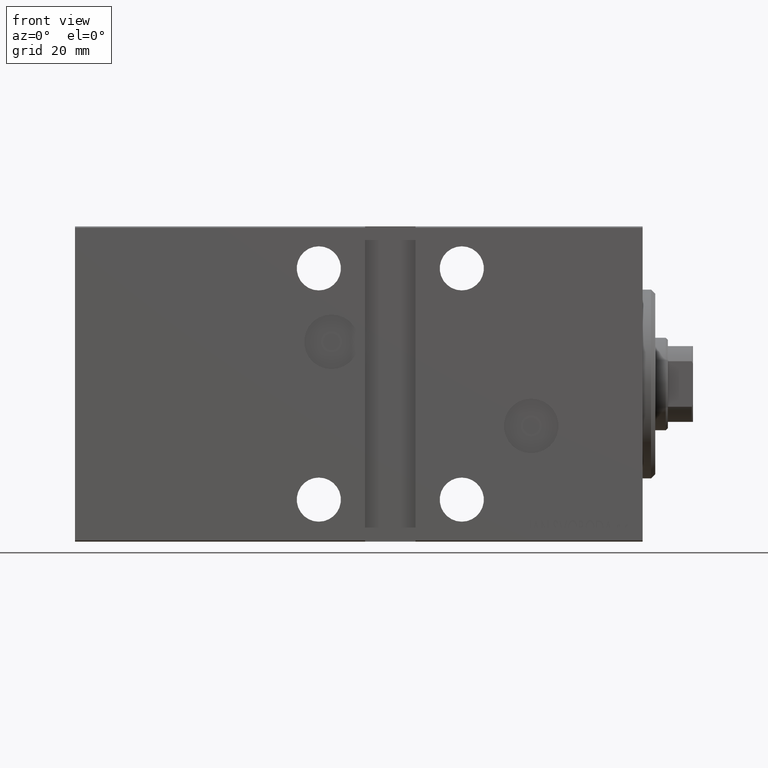
[diagram: clean part render]
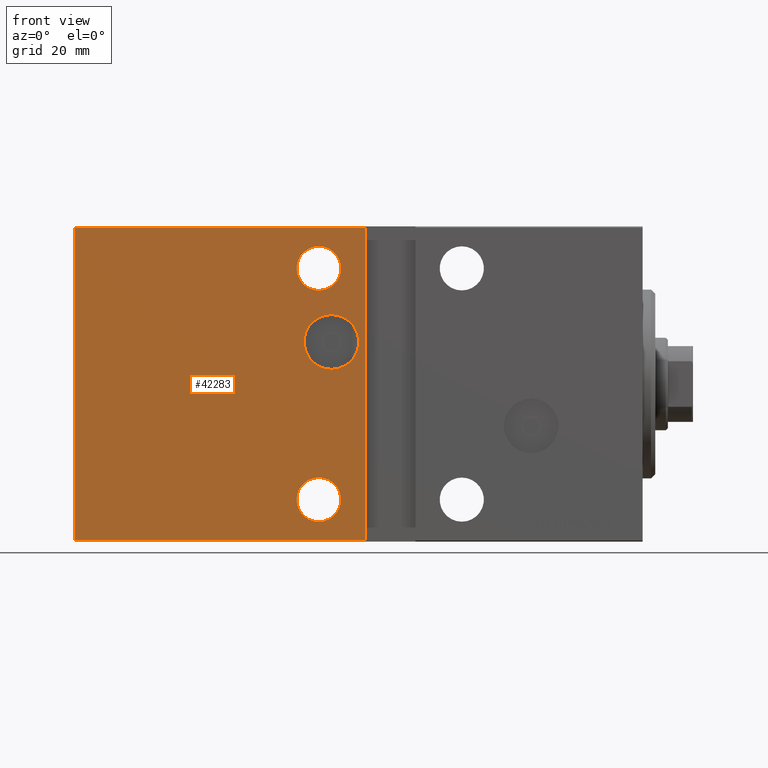
[diagram: same view with one face highlighted and labeled with its STEP entity id]
A machine part, front view. The second image highlights one B-rep face of the part: STEP entity #42283.
In plain terms, the highlighted planar face has unit normal (-0, 1, -0).
Its self-contained STEP definition (entity closure, byte-faithful):
#455 = CARTESIAN_POINT ( 'NONE',  ( 135.0000000000000000, 27.50000000000000355, -37.50000000000000000 ) ) ;
#468 = CIRCLE ( 'NONE', #22357, 5.250000000000004441 ) ;
#539 = EDGE_LOOP ( 'NONE', ( #28275, #36237 ) ) ;
#675 = DIRECTION ( 'NONE',  ( 0.000000000000000000, 0.000000000000000000, 1.000000000000000000 ) ) ;
#845 = CIRCLE ( 'NONE', #9316, 5.250000000000004441 ) ;
#868 = CARTESIAN_POINT ( 'NONE',  ( 74.00000000000000000, 27.50000000000000000, 10.00000000000000178 ) ) ;
#1470 = EDGE_CURVE ( 'NONE', #42209, #6439, #2373, .T. ) ;
#1658 = EDGE_CURVE ( 'NONE', #7957, #18599, #845, .T. ) ;
#1794 = CIRCLE ( 'NONE', #6033, 5.250000000000000888 ) ;
#2373 = LINE ( 'NONE', #35804, #10015 ) ;
#2849 = FACE_BOUND ( 'NONE', #23491, .T. ) ;
#2998 = AXIS2_PLACEMENT_3D ( 'NONE', #3508, #6824, #29853 ) ;
#3358 = LINE ( 'NONE', #455, #3567 ) ;
#3508 = CARTESIAN_POINT ( 'NONE',  ( 135.0000000000000000, 27.50000000000000355, -37.50000000000000000 ) ) ;
#3567 = VECTOR ( 'NONE', #10421, 1000.000000000000000 ) ;
#5081 = DIRECTION ( 'NONE',  ( -1.000000000000000000, 0.000000000000000000, 0.000000000000000000 ) ) ;
#5202 = AXIS2_PLACEMENT_3D ( 'NONE', #39731, #19379, #32219 ) ;
#5644 = CARTESIAN_POINT ( 'NONE',  ( 66.00000000000001421, 27.50000000000000000, 37.50000000000001421 ) ) ;
#5995 = CARTESIAN_POINT ( 'NONE',  ( 77.00000000000000000, 27.50000000000002487, -27.50000000000000000 ) ) ;
#6033 = AXIS2_PLACEMENT_3D ( 'NONE', #27032, #24577, #675 ) ;
#6439 = VERTEX_POINT ( 'NONE', #40111 ) ;
#6606 = PLANE ( 'NONE',  #2998 ) ;
#6824 = DIRECTION ( 'NONE',  ( 0.000000000000000000, -1.000000000000000000, -9.251858538542970348E-17 ) ) ;
#7957 = VERTEX_POINT ( 'NONE', #29726 ) ;
#9316 = AXIS2_PLACEMENT_3D ( 'NONE', #30265, #9675, #43759 ) ;
#9474 = FACE_BOUND ( 'NONE', #42260, .T. ) ;
#9675 = DIRECTION ( 'NONE',  ( 0.000000000000000000, 1.000000000000000000, 0.000000000000000000 ) ) ;
#10015 = VECTOR ( 'NONE', #10862, 1000.000000000000000 ) ;
#10135 = FACE_OUTER_BOUND ( 'NONE', #27950, .T. ) ;
#10252 = ORIENTED_EDGE ( 'NONE', *, *, #15032, .F. ) ;
#10350 = FACE_BOUND ( 'NONE', #539, .T. ) ;
#10421 = DIRECTION ( 'NONE',  ( 0.000000000000000000, -9.251858538542970348E-17, 1.000000000000000000 ) ) ;
#10862 = DIRECTION ( 'NONE',  ( 1.000000000000000000, 0.000000000000000000, 0.000000000000000000 ) ) ;
#11274 = DIRECTION ( 'NONE',  ( 0.000000000000000000, 0.000000000000000000, 1.000000000000000000 ) ) ;
#12389 = CARTESIAN_POINT ( 'NONE',  ( 77.00000000000001421, 27.50000000000002487, 22.24999999999999645 ) ) ;
#13006 = EDGE_CURVE ( 'NONE', #41197, #14043, #1794, .T. ) ;
#13471 = ORIENTED_EDGE ( 'NONE', *, *, #36581, .F. ) ;
#14043 = VERTEX_POINT ( 'NONE', #12389 ) ;
#14052 = CIRCLE ( 'NONE', #16878, 5.250000000000000888 ) ;
#15032 = EDGE_CURVE ( 'NONE', #18599, #7957, #468, .T. ) ;
#16245 = VERTEX_POINT ( 'NONE', #22765 ) ;
#16878 = AXIS2_PLACEMENT_3D ( 'NONE', #37610, #20784, #26552 ) ;
#17346 = ORIENTED_EDGE ( 'NONE', *, *, #18514, .F. ) ;
#18514 = EDGE_CURVE ( 'NONE', #42209, #26075, #29769, .T. ) ;
#18599 = VERTEX_POINT ( 'NONE', #37070 ) ;
#19237 = LINE ( 'NONE', #25213, #28261 ) ;
#19379 = DIRECTION ( 'NONE',  ( 0.000000000000000000, 1.000000000000000000, 1.067522139062650425E-16 ) ) ;
#19492 = VECTOR ( 'NONE', #36189, 1000.000000000000000 ) ;
#19702 = CARTESIAN_POINT ( 'NONE',  ( 135.0000000000000000, 27.50000000000000355, -37.19999999999998863 ) ) ;
#19728 = ORIENTED_EDGE ( 'NONE', *, *, #13006, .F. ) ;
#19923 = EDGE_CURVE ( 'NONE', #16245, #38543, #29233, .T. ) ;
#19941 = DIRECTION ( 'NONE',  ( 0.000000000000000000, 0.000000000000000000, 1.000000000000000000 ) ) ;
#20784 = DIRECTION ( 'NONE',  ( 0.000000000000000000, 1.000000000000000000, 0.000000000000000000 ) ) ;
#21798 = ORIENTED_EDGE ( 'NONE', *, *, #35532, .T. ) ;
#22357 = AXIS2_PLACEMENT_3D ( 'NONE', #5995, #29676, #19941 ) ;
#22765 = CARTESIAN_POINT ( 'NONE',  ( 74.00000000000000000, 27.50000000000000000, 3.500000000000000444 ) ) ;
#23329 = VERTEX_POINT ( 'NONE', #19702 ) ;
#23491 = EDGE_LOOP ( 'NONE', ( #23537, #10252 ) ) ;
#23537 = ORIENTED_EDGE ( 'NONE', *, *, #1658, .F. ) ;
#24577 = DIRECTION ( 'NONE',  ( 0.000000000000000000, 1.000000000000000000, 0.000000000000000000 ) ) ;
#25213 = CARTESIAN_POINT ( 'NONE',  ( 135.0000000000000000, 27.50000000000000355, -37.19999999999998863 ) ) ;
#25729 = ORIENTED_EDGE ( 'NONE', *, *, #28251, .F. ) ;
#26075 = VERTEX_POINT ( 'NONE', #26315 ) ;
#26315 = CARTESIAN_POINT ( 'NONE',  ( 66.00000000000000000, 27.50000000000000000, -37.19999999999998863 ) ) ;
#26552 = DIRECTION ( 'NONE',  ( 0.000000000000000000, 0.000000000000000000, 1.000000000000000000 ) ) ;
#27032 = CARTESIAN_POINT ( 'NONE',  ( 77.00000000000001421, 27.50000000000002487, 27.50000000000000000 ) ) ;
#27779 = ORIENTED_EDGE ( 'NONE', *, *, #1470, .T. ) ;
#27870 = DIRECTION ( 'NONE',  ( 0.000000000000000000, 1.000000000000000000, 1.067522139062650425E-16 ) ) ;
#27950 = EDGE_LOOP ( 'NONE', ( #13471, #21798, #17346, #27779 ) ) ;
#28251 = EDGE_CURVE ( 'NONE', #14043, #41197, #14052, .T. ) ;
#28261 = VECTOR ( 'NONE', #5081, 1000.000000000000000 ) ;
#28275 = ORIENTED_EDGE ( 'NONE', *, *, #34452, .F. ) ;
#29233 = CIRCLE ( 'NONE', #5202, 6.500000000000002665 ) ;
#29656 = AXIS2_PLACEMENT_3D ( 'NONE', #868, #27870, #11274 ) ;
#29676 = DIRECTION ( 'NONE',  ( 0.000000000000000000, 1.000000000000000000, 0.000000000000000000 ) ) ;
#29726 = CARTESIAN_POINT ( 'NONE',  ( 77.00000000000000000, 27.50000000000002487, -22.24999999999999645 ) ) ;
#29769 = LINE ( 'NONE', #5644, #19492 ) ;
#29853 = DIRECTION ( 'NONE',  ( 0.000000000000000000, 9.251858538542970348E-17, -1.000000000000000000 ) ) ;
#30265 = CARTESIAN_POINT ( 'NONE',  ( 77.00000000000000000, 27.50000000000002487, -27.50000000000000000 ) ) ;
#30776 = CARTESIAN_POINT ( 'NONE',  ( 74.00000000000000000, 27.50000000000000000, 16.50000000000000355 ) ) ;
#32219 = DIRECTION ( 'NONE',  ( 0.000000000000000000, 0.000000000000000000, 1.000000000000000000 ) ) ;
#34452 = EDGE_CURVE ( 'NONE', #38543, #16245, #36008, .T. ) ;
#35532 = EDGE_CURVE ( 'NONE', #23329, #26075, #19237, .T. ) ;
#35804 = CARTESIAN_POINT ( 'NONE',  ( 135.0000000000000000, 27.49999999999999645, 37.20000000000001705 ) ) ;
#36008 = CIRCLE ( 'NONE', #29656, 6.500000000000002665 ) ;
#36189 = DIRECTION ( 'NONE',  ( -1.850371707708594070E-16, 0.000000000000000000, -1.000000000000000000 ) ) ;
#36237 = ORIENTED_EDGE ( 'NONE', *, *, #19923, .F. ) ;
#36581 = EDGE_CURVE ( 'NONE', #23329, #6439, #3358, .T. ) ;
#37070 = CARTESIAN_POINT ( 'NONE',  ( 77.00000000000000000, 27.50000000000002487, -32.75000000000000000 ) ) ;
#37610 = CARTESIAN_POINT ( 'NONE',  ( 77.00000000000001421, 27.50000000000002487, 27.50000000000000000 ) ) ;
#38543 = VERTEX_POINT ( 'NONE', #30776 ) ;
#39731 = CARTESIAN_POINT ( 'NONE',  ( 74.00000000000000000, 27.50000000000000000, 10.00000000000000178 ) ) ;
#40111 = CARTESIAN_POINT ( 'NONE',  ( 135.0000000000000000, 27.49999999999999645, 37.20000000000001705 ) ) ;
#41197 = VERTEX_POINT ( 'NONE', #42102 ) ;
#42102 = CARTESIAN_POINT ( 'NONE',  ( 77.00000000000001421, 27.50000000000002487, 32.75000000000000000 ) ) ;
#42209 = VERTEX_POINT ( 'NONE', #42464 ) ;
#42260 = EDGE_LOOP ( 'NONE', ( #19728, #25729 ) ) ;
#42283 = ADVANCED_FACE ( 'NONE', ( #10350, #2849, #9474, #10135 ), #6606, .F. ) ;
#42464 = CARTESIAN_POINT ( 'NONE',  ( 66.00000000000001421, 27.50000000000000000, 37.20000000000001705 ) ) ;
#43759 = DIRECTION ( 'NONE',  ( 0.000000000000000000, 0.000000000000000000, 1.000000000000000000 ) ) ;